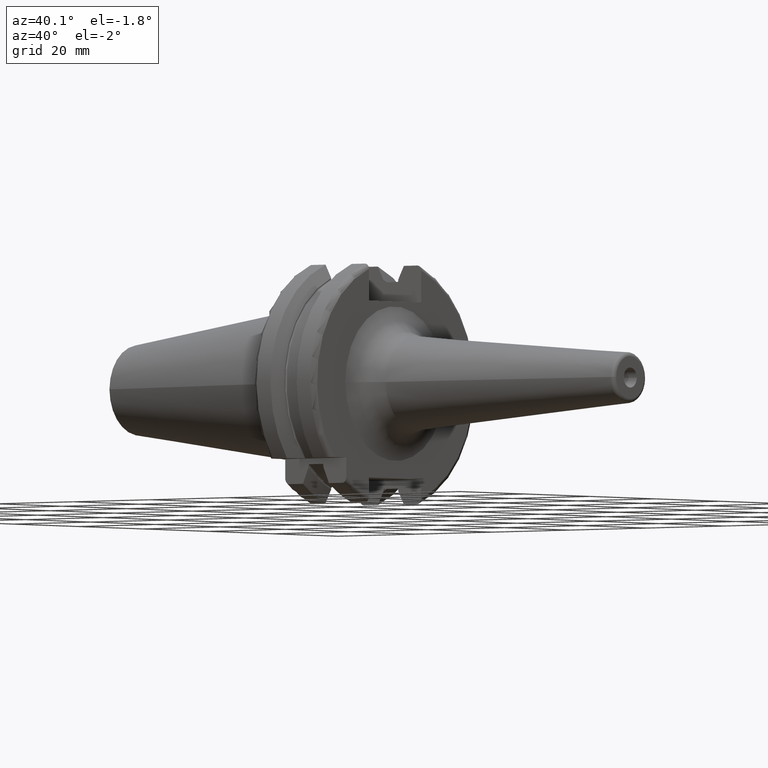
[diagram: clean part render]
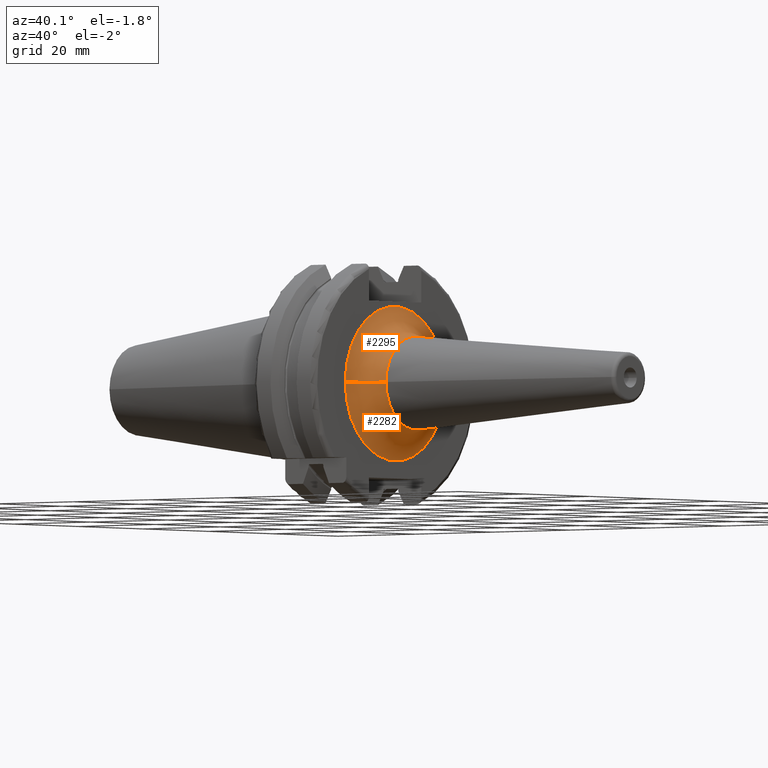
[diagram: same view with one multi-face feature highlighted, each face labeled with its STEP entity id]
A machine part, auxiliary view. The highlighted faces form ONE feature: a constant-radius fillet chain: 2 tangent blend faces with common blend radius 6 mm. The faces share edges in the B-rep.
Their STEP definitions:
[1] entity #2295 (Torus):
#173=CARTESIAN_POINT('',(1.905E1,0.E0,0.E0));
#174=DIRECTION('',(1.E0,0.E0,0.E0));
#175=DIRECTION('',(0.E0,1.E0,0.E0));
#176=AXIS2_PLACEMENT_3D('',#173,#174,#175);
#842=CARTESIAN_POINT('',(2.505E1,-1.534321198091E1,5.882588860473E-11));
#843=DIRECTION('',(0.E0,-3.834002559877E-12,-1.E0));
#844=DIRECTION('',(-1.E0,6.086982769678E-13,0.E0));
#845=AXIS2_PLACEMENT_3D('',#842,#843,#844);
#847=CARTESIAN_POINT('',(2.505E1,1.534321198091E1,-5.882760945042E-11));
#848=DIRECTION('',(0.E0,3.834110112733E-12,1.E0));
#849=DIRECTION('',(-1.E0,-6.084022174946E-13,0.E0));
#850=AXIS2_PLACEMENT_3D('',#847,#848,#849);
#857=CARTESIAN_POINT('',(2.457924542563E1,0.E0,0.E0));
#858=DIRECTION('',(1.E0,0.E0,0.E0));
#859=DIRECTION('',(0.E0,1.E0,0.E0));
#860=AXIS2_PLACEMENT_3D('',#857,#858,#859);
#1364=CARTESIAN_POINT('',(1.905E1,-1.534321198091E1,0.E0));
#1365=CARTESIAN_POINT('',(1.905E1,1.534321198091E1,0.E0));
#1366=VERTEX_POINT('',#1364);
#1367=VERTEX_POINT('',#1365);
#1368=CARTESIAN_POINT('',(2.457924542563E1,-9.361707978511E0,0.E0));
#1369=CARTESIAN_POINT('',(2.457924542563E1,9.361707978511E0,0.E0));
#1370=VERTEX_POINT('',#1368);
#1371=VERTEX_POINT('',#1369);
#2283=CARTESIAN_POINT('',(2.505E1,0.E0,0.E0));
#2284=DIRECTION('',(1.E0,0.E0,0.E0));
#2285=DIRECTION('',(0.E0,9.997840234329E-1,-2.078236002819E-2));
#2286=AXIS2_PLACEMENT_3D('',#2283,#2284,#2285);
#2287=TOROIDAL_SURFACE('',#2286,1.534321198091E1,6.E0);
#2288=ORIENTED_EDGE('',*,*,#1591,.F.);
#2289=ORIENTED_EDGE('',*,*,#2278,.T.);
#2291=ORIENTED_EDGE('',*,*,#2290,.T.);
#2292=ORIENTED_EDGE('',*,*,#2274,.F.);
#2293=EDGE_LOOP('',(#2288,#2289,#2291,#2292));
#2294=FACE_OUTER_BOUND('',#2293,.F.);
#2295=ADVANCED_FACE('',(#2294),#2287,.F.);
#177=CIRCLE('',#176,1.534321198091E1);
#846=CIRCLE('',#845,6.E0);
#851=CIRCLE('',#850,6.E0);
#861=CIRCLE('',#860,9.361707978511E0);
#1591=EDGE_CURVE('',#1367,#1366,#177,.T.);
#2274=EDGE_CURVE('',#1366,#1370,#846,.T.);
#2278=EDGE_CURVE('',#1367,#1371,#851,.T.);
#2290=EDGE_CURVE('',#1371,#1370,#861,.T.);
[2] entity #2282 (Torus):
#168=CARTESIAN_POINT('',(1.905E1,0.E0,0.E0));
#169=DIRECTION('',(1.E0,0.E0,0.E0));
#170=DIRECTION('',(0.E0,-1.E0,0.E0));
#171=AXIS2_PLACEMENT_3D('',#168,#169,#170);
#842=CARTESIAN_POINT('',(2.505E1,-1.534321198091E1,5.882588860473E-11));
#843=DIRECTION('',(0.E0,-3.834002559877E-12,-1.E0));
#844=DIRECTION('',(-1.E0,6.086982769678E-13,0.E0));
#845=AXIS2_PLACEMENT_3D('',#842,#843,#844);
#847=CARTESIAN_POINT('',(2.505E1,1.534321198091E1,-5.882760945042E-11));
#848=DIRECTION('',(0.E0,3.834110112733E-12,1.E0));
#849=DIRECTION('',(-1.E0,-6.084022174946E-13,0.E0));
#850=AXIS2_PLACEMENT_3D('',#847,#848,#849);
#881=CARTESIAN_POINT('',(2.457924542563E1,0.E0,0.E0));
#882=DIRECTION('',(1.E0,0.E0,0.E0));
#883=DIRECTION('',(0.E0,-1.E0,0.E0));
#884=AXIS2_PLACEMENT_3D('',#881,#882,#883);
#1364=CARTESIAN_POINT('',(1.905E1,-1.534321198091E1,0.E0));
#1365=CARTESIAN_POINT('',(1.905E1,1.534321198091E1,0.E0));
#1366=VERTEX_POINT('',#1364);
#1367=VERTEX_POINT('',#1365);
#1368=CARTESIAN_POINT('',(2.457924542563E1,-9.361707978511E0,0.E0));
#1369=CARTESIAN_POINT('',(2.457924542563E1,9.361707978511E0,0.E0));
#1370=VERTEX_POINT('',#1368);
#1371=VERTEX_POINT('',#1369);
#2268=CARTESIAN_POINT('',(2.505E1,0.E0,0.E0));
#2269=DIRECTION('',(1.E0,0.E0,0.E0));
#2270=DIRECTION('',(0.E0,-9.997840234329E-1,2.078236002819E-2));
#2271=AXIS2_PLACEMENT_3D('',#2268,#2269,#2270);
#2272=TOROIDAL_SURFACE('',#2271,1.534321198091E1,6.E0);
#2273=ORIENTED_EDGE('',*,*,#1589,.F.);
#2275=ORIENTED_EDGE('',*,*,#2274,.T.);
#2277=ORIENTED_EDGE('',*,*,#2276,.T.);
#2279=ORIENTED_EDGE('',*,*,#2278,.F.);
#2280=EDGE_LOOP('',(#2273,#2275,#2277,#2279));
#2281=FACE_OUTER_BOUND('',#2280,.F.);
#2282=ADVANCED_FACE('',(#2281),#2272,.F.);
#172=CIRCLE('',#171,1.534321198091E1);
#846=CIRCLE('',#845,6.E0);
#851=CIRCLE('',#850,6.E0);
#885=CIRCLE('',#884,9.361707978511E0);
#1589=EDGE_CURVE('',#1366,#1367,#172,.T.);
#2274=EDGE_CURVE('',#1366,#1370,#846,.T.);
#2276=EDGE_CURVE('',#1370,#1371,#885,.T.);
#2278=EDGE_CURVE('',#1367,#1371,#851,.T.);